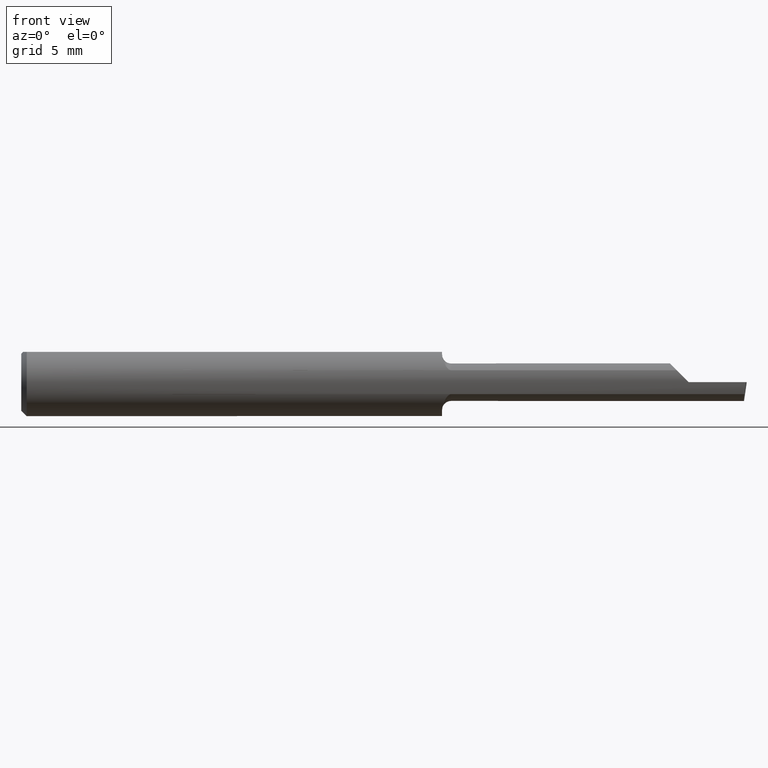
[diagram: clean part render]
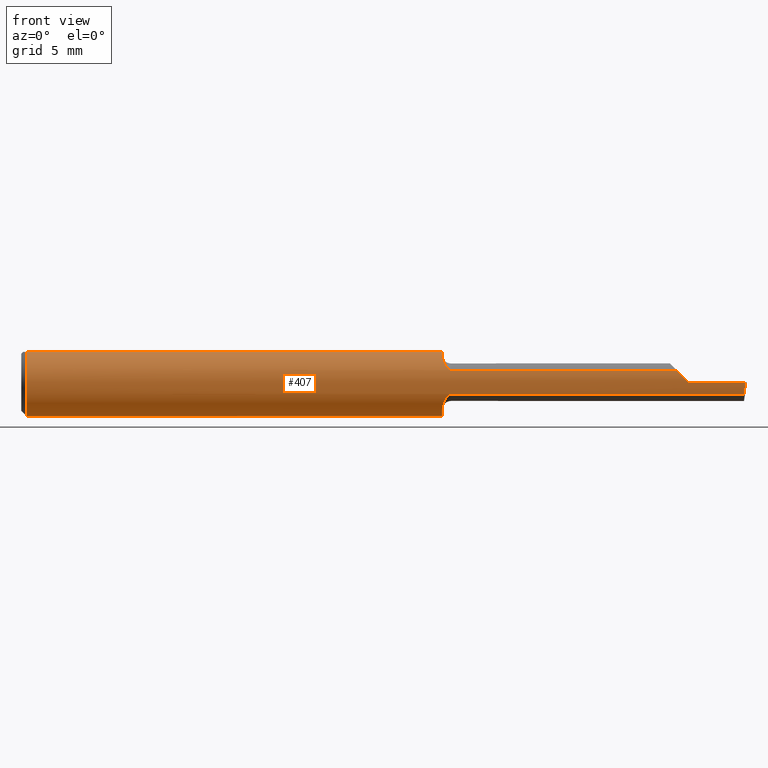
[diagram: same view with one face highlighted and labeled with its STEP entity id]
A machine part, front view. The second image highlights one B-rep face of the part: STEP entity #407.
In plain terms, the highlighted cylindrical surface (edge-blend (fillet) strip) has radius 2.3774 mm, axis along (-1, -0, -0).
Its self-contained STEP definition (entity closure, byte-faithful):
#2 = DIRECTION ( 'NONE',  ( -1.000000000000000000, -0.0000000000000000000, -0.0000000000000000000 ) ) ;
#3 = DIRECTION ( 'NONE',  ( 0.0000000000000000000, 0.0000000000000000000, 1.000000000000000000 ) ) ;
#4 = CARTESIAN_POINT ( 'NONE',  ( 1.169440191089343717, -0.08177118545005539196, -0.04577359403162507140 ) ) ;
#7 = B_SPLINE_CURVE_WITH_KNOTS ( 'NONE', 3,
 ( #384, #124, #79, #518, #263, #30, #340, #387, #69, #390, #571, #341 ),
 .UNSPECIFIED., .F., .F.,
 ( 4, 2, 2, 2, 2, 4 ),
 ( 1.138943784590839172E-05, 0.0004225593089546699843, 0.0008337291800634315719, 0.001244899051172193485, 0.001450483986726571785, 0.001656068922280950302 ),
 .UNSPECIFIED. ) ;
#8 = CARTESIAN_POINT ( 'NONE',  ( 1.522499999999999964, -0.08761684210526324290, -0.03292793615611784575 ) ) ;
#14 =( BOUNDED_CURVE ( )  B_SPLINE_CURVE ( 3, ( #97, #457, #51, #459 ),
 .UNSPECIFIED., .F., .T. ) 
 B_SPLINE_CURVE_WITH_KNOTS ( ( 4, 4 ),
 ( 1.001259756638107623, 1.360746882514813461 ),
 .UNSPECIFIED. ) 
 CURVE ( )  GEOMETRIC_REPRESENTATION_ITEM ( )  RATIONAL_B_SPLINE_CURVE ( ( 1.000000000000000000, 0.9892597135044076673, 0.9892597135044076673, 1.000000000000000000 ) ) 
 REPRESENTATION_ITEM ( '' )  );
#20 = VERTEX_POINT ( 'NONE', #505 ) ;
#22 = EDGE_CURVE ( 'NONE', #20, #489, #39, .T. ) ;
#30 = CARTESIAN_POINT ( 'NONE',  ( 1.167170565689160888, -0.07921348361094636414, 0.05012018735743086623 ) ) ;
#39 = CIRCLE ( 'NONE', #428, 0.09360000000000001652 ) ;
#43 = CARTESIAN_POINT ( 'NONE',  ( 1.167214764395544391, -0.07927709071642491390, -0.05002561729526815160 ) ) ;
#44 = CIRCLE ( 'NONE', #382, 0.09360000000000001652 ) ;
#51 = CARTESIAN_POINT ( 'NONE',  ( 1.995524967455633902, -0.09360000000000001652, -0.01127681812736613248 ) ) ;
#52 = CARTESIAN_POINT ( 'NONE',  ( 1.522499999999999964, -0.08761684210526324290, 0.03292793615611784575 ) ) ;
#64 = CARTESIAN_POINT ( 'NONE',  ( 1.807072063843881971, -0.08761684210526325678, 0.03292793615611783187 ) ) ;
#67 = VECTOR ( 'NONE', #584, 39.37007874015748143 ) ;
#69 = CARTESIAN_POINT ( 'NONE',  ( 1.175620214409630604, -0.08570056439211902466, 0.03767842731144282337 ) ) ;
#79 = CARTESIAN_POINT ( 'NONE',  ( 1.160447921123109349, -0.06231628215915101937, 0.07004382716008761278 ) ) ;
#80 = FACE_OUTER_BOUND ( 'NONE', #156, .T. ) ;
#84 = EDGE_CURVE ( 'NONE', #282, #140, #193, .T. ) ;
#88 = ORIENTED_EDGE ( 'NONE', *, *, #514, .T. ) ;
#97 = CARTESIAN_POINT ( 'NONE',  ( 1.993022307651335812, -0.08761684210526324290, -0.03292793615611784575 ) ) ;
#105 = VERTEX_POINT ( 'NONE', #559 ) ;
#109 = DIRECTION ( 'NONE',  ( -1.000000000000000000, -0.0000000000000000000, -0.0000000000000000000 ) ) ;
#115 = ORIENTED_EDGE ( 'NONE', *, *, #313, .F. ) ;
#118 = DIRECTION ( 'NONE',  ( 0.0000000000000000000, 1.000000000000000000, 0.0000000000000000000 ) ) ;
#122 = AXIS2_PLACEMENT_3D ( 'NONE', #231, #187, #442 ) ;
#124 = CARTESIAN_POINT ( 'NONE',  ( 1.160000000000000364, -0.05819923687593512446, 0.07350986718065719017 ) ) ;
#126 = CARTESIAN_POINT ( 'NONE',  ( 1.807072063843881971, -0.08761684210526325678, 0.03292793615611783187 ) ) ;
#130 = VERTEX_POINT ( 'NONE', #562 ) ;
#140 = VERTEX_POINT ( 'NONE', #64 ) ;
#144 = CARTESIAN_POINT ( 'NONE',  ( 0.0000000000000000000, -0.04209513035969835587, 0.08360000000000000764 ) ) ;
#156 = EDGE_LOOP ( 'NONE', ( #592, #276, #416, #254, #328, #378, #577, #285, #115, #320, #88, #369, #423 ) ) ;
#169 = DIRECTION ( 'NONE',  ( 1.000000000000000000, -4.268512490100411279E-18, 0.0000000000000000000 ) ) ;
#177 = EDGE_CURVE ( 'NONE', #564, #140, #184, .T. ) ;
#180 = VECTOR ( 'NONE', #526, 39.37007874015748143 ) ;
#181 = EDGE_CURVE ( 'NONE', #105, #475, #361, .T. ) ;
#184 =( BOUNDED_CURVE ( )  B_SPLINE_CURVE ( 3, ( #531, #391, #307, #126 ),
 .UNSPECIFIED., .F., .T. ) 
 B_SPLINE_CURVE_WITH_KNOTS ( ( 4, 4 ),
 ( 4.712388980384689674, 5.071876106261395734 ),
 .UNSPECIFIED. ) 
 CURVE ( )  GEOMETRIC_REPRESENTATION_ITEM ( )  RATIONAL_B_SPLINE_CURVE ( ( 1.000000000000000000, 0.9892597135044076673, 0.9892597135044076673, 1.000000000000000000 ) ) 
 REPRESENTATION_ITEM ( '' )  );
#187 = DIRECTION ( 'NONE',  ( 1.000000000000000000, -4.268512490100411279E-18, 0.0000000000000000000 ) ) ;
#189 = CARTESIAN_POINT ( 'NONE',  ( 1.160000000000000142, -0.05372210526315807089, -0.07664786628533221124 ) ) ;
#192 = LINE ( 'NONE', #539, #67 ) ;
#193 = LINE ( 'NONE', #52, #452 ) ;
#194 = DIRECTION ( 'NONE',  ( -1.000000000000000000, -0.0000000000000000000, -0.0000000000000000000 ) ) ;
#196 = CARTESIAN_POINT ( 'NONE',  ( 1.996910061254835833, -0.09360000000000009979, -6.663204267364653954E-17 ) ) ;
#206 = CARTESIAN_POINT ( 'NONE',  ( 0.01499999999999999944, -0.04209513035969835587, 0.08360000000000000764 ) ) ;
#212 = CARTESIAN_POINT ( 'NONE',  ( 0.0000000000000000000, 0.04209513035969837669, 0.08360000000000000764 ) ) ;
#213 = CARTESIAN_POINT ( 'NONE',  ( 1.160000000000000142, -0.05372210526315807089, -0.07664786628533221124 ) ) ;
#216 = EDGE_CURVE ( 'NONE', #347, #564, #192, .T. ) ;
#231 = CARTESIAN_POINT ( 'NONE',  ( 1.160000000000000142, 0.0000000000000000000, 0.0000000000000000000 ) ) ;
#236 = CIRCLE ( 'NONE', #524, 0.09360000000000001652 ) ;
#246 = CARTESIAN_POINT ( 'NONE',  ( 1.993022307651335812, -0.08761684210526324290, -0.03292793615611784575 ) ) ;
#248 = DIRECTION ( 'NONE',  ( 1.000000000000000000, -4.268512490100411279E-18, 0.0000000000000000000 ) ) ;
#254 = ORIENTED_EDGE ( 'NONE', *, *, #177, .T. ) ;
#263 = CARTESIAN_POINT ( 'NONE',  ( 1.163573898438561072, -0.07331853621787791375, 0.05840549129485480412 ) ) ;
#266 = EDGE_CURVE ( 'NONE', #377, #570, #449, .T. ) ;
#276 = ORIENTED_EDGE ( 'NONE', *, *, #386, .T. ) ;
#282 = VERTEX_POINT ( 'NONE', #283 ) ;
#283 = CARTESIAN_POINT ( 'NONE',  ( 1.185000000000000053, -0.08761684210526317351, 0.03292793615611785268 ) ) ;
#285 = ORIENTED_EDGE ( 'NONE', *, *, #348, .T. ) ;
#287 = CARTESIAN_POINT ( 'NONE',  ( 1.161744805833127003, -0.07033817883199360022, -0.06260462116753089112 ) ) ;
#296 = AXIS2_PLACEMENT_3D ( 'NONE', #465, #109, #421 ) ;
#301 = EDGE_CURVE ( 'NONE', #453, #377, #358, .T. ) ;
#307 = CARTESIAN_POINT ( 'NONE',  ( 1.817628038131437584, -0.09158396120079809188, 0.02237196186856219363 ) ) ;
#313 = EDGE_CURVE ( 'NONE', #489, #484, #44, .T. ) ;
#319 = CARTESIAN_POINT ( 'NONE',  ( 1.179715439975441704, -0.08710361937740859761, -0.03431086475148214382 ) ) ;
#320 = ORIENTED_EDGE ( 'NONE', *, *, #22, .F. ) ;
#322 = DIRECTION ( 'NONE',  ( 0.0000000000000000000, 0.0000000000000000000, 1.000000000000000000 ) ) ;
#323 = CARTESIAN_POINT ( 'NONE',  ( 1.160000000000000142, -0.06265771844804364499, -0.07038493979599887151 ) ) ;
#325 = DIRECTION ( 'NONE',  ( -1.000000000000000000, 4.268512490100411279E-18, -0.0000000000000000000 ) ) ;
#328 = ORIENTED_EDGE ( 'NONE', *, *, #84, .F. ) ;
#340 = CARTESIAN_POINT ( 'NONE',  ( 1.169416114077285407, -0.08174975249068039407, 0.04581306663839099236 ) ) ;
#341 = CARTESIAN_POINT ( 'NONE',  ( 1.185000000000000053, -0.08761684210526317351, 0.03292793615611785268 ) ) ;
#347 = VERTEX_POINT ( 'NONE', #196 ) ;
#348 = EDGE_CURVE ( 'NONE', #105, #484, #549, .T. ) ;
#358 = LINE ( 'NONE', #8, #462 ) ;
#361 = CIRCLE ( 'NONE', #122, 0.09360000000000001652 ) ;
#363 = CARTESIAN_POINT ( 'NONE',  ( 1.173947372900657982, -0.08481750515389899214, -0.03965032143108258855 ) ) ;
#366 = CARTESIAN_POINT ( 'NONE',  ( 0.01499999999999999598, 0.0000000000000000000, 0.0000000000000000000 ) ) ;
#369 = ORIENTED_EDGE ( 'NONE', *, *, #579, .F. ) ;
#377 = VERTEX_POINT ( 'NONE', #412 ) ;
#378 = ORIENTED_EDGE ( 'NONE', *, *, #525, .F. ) ;
#382 = AXIS2_PLACEMENT_3D ( 'NONE', #366, #450, #322 ) ;
#384 = CARTESIAN_POINT ( 'NONE',  ( 1.160000000000000142, -0.05372210526315807089, 0.07664786628533221124 ) ) ;
#386 = EDGE_CURVE ( 'NONE', #453, #347, #14, .T. ) ;
#387 = CARTESIAN_POINT ( 'NONE',  ( 1.173927022897599537, -0.08480630317146348185, 0.03967462311308224410 ) ) ;
#388 = CARTESIAN_POINT ( 'NONE',  ( 1.840000000000000080, -0.09360000000000005815, 1.959434878635762025E-17 ) ) ;
#390 = CARTESIAN_POINT ( 'NONE',  ( 1.179688845260382202, -0.08709610918661540857, 0.03432955558035357541 ) ) ;
#391 = CARTESIAN_POINT ( 'NONE',  ( 1.828723181872633941, -0.09360000000000001652, 0.01127681812736603534 ) ) ;
#407 = ADVANCED_FACE ( 'NONE', ( #80 ), #479, .T. ) ;
#412 = CARTESIAN_POINT ( 'NONE',  ( 1.185000000000000053, -0.08761684210526320127, -0.03292793615611782493 ) ) ;
#416 = ORIENTED_EDGE ( 'NONE', *, *, #216, .T. ) ;
#421 = DIRECTION ( 'NONE',  ( 0.0000000000000000000, 0.0000000000000000000, 1.000000000000000000 ) ) ;
#423 = ORIENTED_EDGE ( 'NONE', *, *, #266, .F. ) ;
#426 = VECTOR ( 'NONE', #2, 39.37007874015748143 ) ;
#428 = AXIS2_PLACEMENT_3D ( 'NONE', #458, #194, #3 ) ;
#442 = DIRECTION ( 'NONE',  ( 0.0000000000000000000, 1.000000000000000000, 0.0000000000000000000 ) ) ;
#449 = B_SPLINE_CURVE_WITH_KNOTS ( 'NONE', 3,
 ( #550, #591, #319, #461, #363, #4, #43, #287, #323, #189 ),
 .UNSPECIFIED., .F., .F.,
 ( 4, 2, 2, 2, 4 ),
 ( 1.963033868560453827E-07, 0.0002078258643200551396, 0.0004154554252532542268, 0.0008307145471196515337, 0.001661232790852446581 ),
 .UNSPECIFIED. ) ;
#450 = DIRECTION ( 'NONE',  ( -1.000000000000000000, -0.0000000000000000000, -0.0000000000000000000 ) ) ;
#452 = VECTOR ( 'NONE', #248, 39.37007874015748143 ) ;
#453 = VERTEX_POINT ( 'NONE', #246 ) ;
#457 = CARTESIAN_POINT ( 'NONE',  ( 1.994214979946648647, -0.09158396120079805025, -0.02237196186856228730 ) ) ;
#458 = CARTESIAN_POINT ( 'NONE',  ( 0.01499999999999999598, 0.0000000000000000000, 0.0000000000000000000 ) ) ;
#459 = CARTESIAN_POINT ( 'NONE',  ( 1.996910061254835833, -0.09360000000000009979, -6.663204267364653954E-17 ) ) ;
#461 = CARTESIAN_POINT ( 'NONE',  ( 1.175623196656931935, -0.08570318752220028313, -0.03767279651384475292 ) ) ;
#462 = VECTOR ( 'NONE', #325, 39.37007874015748143 ) ;
#464 = CARTESIAN_POINT ( 'NONE',  ( 1.160000000000000142, -0.05372210526315807089, 0.07664786628533221124 ) ) ;
#465 = CARTESIAN_POINT ( 'NONE',  ( 0.0000000000000000000, 0.0000000000000000000, 0.0000000000000000000 ) ) ;
#475 = VERTEX_POINT ( 'NONE', #464 ) ;
#479 = CYLINDRICAL_SURFACE ( 'NONE', #296, 0.09360000000000001652 ) ;
#484 = VERTEX_POINT ( 'NONE', #206 ) ;
#489 = VERTEX_POINT ( 'NONE', #507 ) ;
#505 = CARTESIAN_POINT ( 'NONE',  ( 0.01499999999999999598, 0.04209513035969837669, 0.08360000000000000764 ) ) ;
#507 = CARTESIAN_POINT ( 'NONE',  ( 0.01499999999999999598, 0.0000000000000000000, -0.09360000000000001652 ) ) ;
#514 = EDGE_CURVE ( 'NONE', #20, #130, #521, .T. ) ;
#518 = CARTESIAN_POINT ( 'NONE',  ( 1.162226166028897056, -0.06987583889871341880, 0.06250459089996668327 ) ) ;
#521 = LINE ( 'NONE', #212, #180 ) ;
#523 = CARTESIAN_POINT ( 'NONE',  ( 1.160000000000000142, 0.0000000000000000000, 0.0000000000000000000 ) ) ;
#524 = AXIS2_PLACEMENT_3D ( 'NONE', #523, #169, #118 ) ;
#525 = EDGE_CURVE ( 'NONE', #475, #282, #7, .T. ) ;
#526 = DIRECTION ( 'NONE',  ( 1.000000000000000000, 0.0000000000000000000, 0.0000000000000000000 ) ) ;
#531 = CARTESIAN_POINT ( 'NONE',  ( 1.840000000000000080, -0.09360000000000005815, 1.959434878635762025E-17 ) ) ;
#539 = CARTESIAN_POINT ( 'NONE',  ( 5.659797890829555466E-31, -0.09359999999999998876, 1.030335658007946046E-15 ) ) ;
#549 = LINE ( 'NONE', #144, #426 ) ;
#550 = CARTESIAN_POINT ( 'NONE',  ( 1.185000000000000053, -0.08761684210526320127, -0.03292793615611782493 ) ) ;
#559 = CARTESIAN_POINT ( 'NONE',  ( 1.160000000000000142, -0.04209513035969843220, 0.08360000000000000764 ) ) ;
#562 = CARTESIAN_POINT ( 'NONE',  ( 1.160000000000000142, 0.04209513035969836975, 0.08360000000000000764 ) ) ;
#564 = VERTEX_POINT ( 'NONE', #388 ) ;
#570 = VERTEX_POINT ( 'NONE', #213 ) ;
#571 = CARTESIAN_POINT ( 'NONE',  ( 1.182224490852164411, -0.08761684210526328453, 0.03292793615611788738 ) ) ;
#577 = ORIENTED_EDGE ( 'NONE', *, *, #181, .F. ) ;
#579 = EDGE_CURVE ( 'NONE', #570, #130, #236, .T. ) ;
#584 = DIRECTION ( 'NONE',  ( -1.000000000000000000, -0.0000000000000000000, -0.0000000000000000000 ) ) ;
#591 = CARTESIAN_POINT ( 'NONE',  ( 1.182224155678839761, -0.08761684210526324290, -0.03292793615611781799 ) ) ;
#592 = ORIENTED_EDGE ( 'NONE', *, *, #301, .F. ) ;